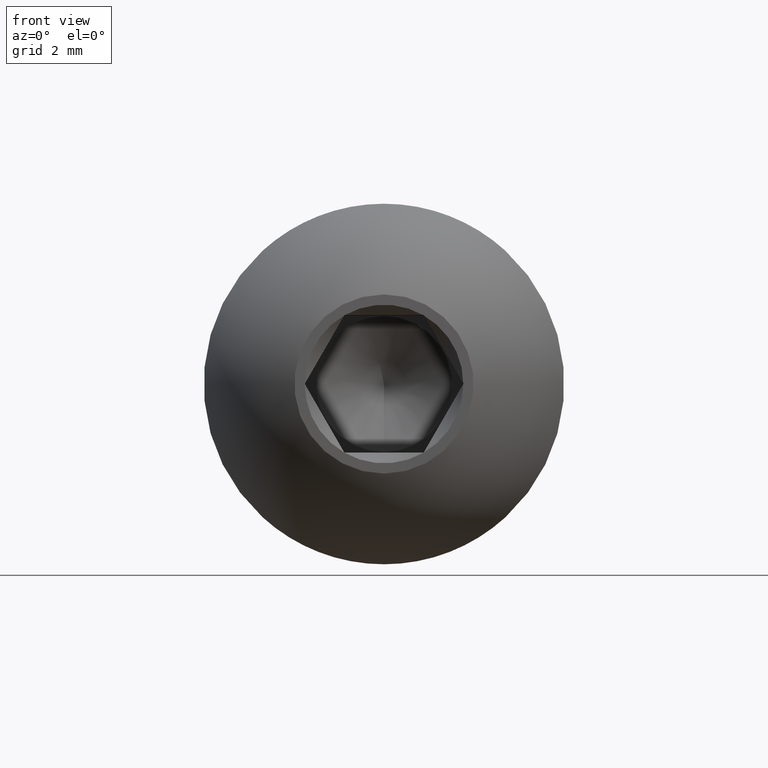
[diagram: clean part render]
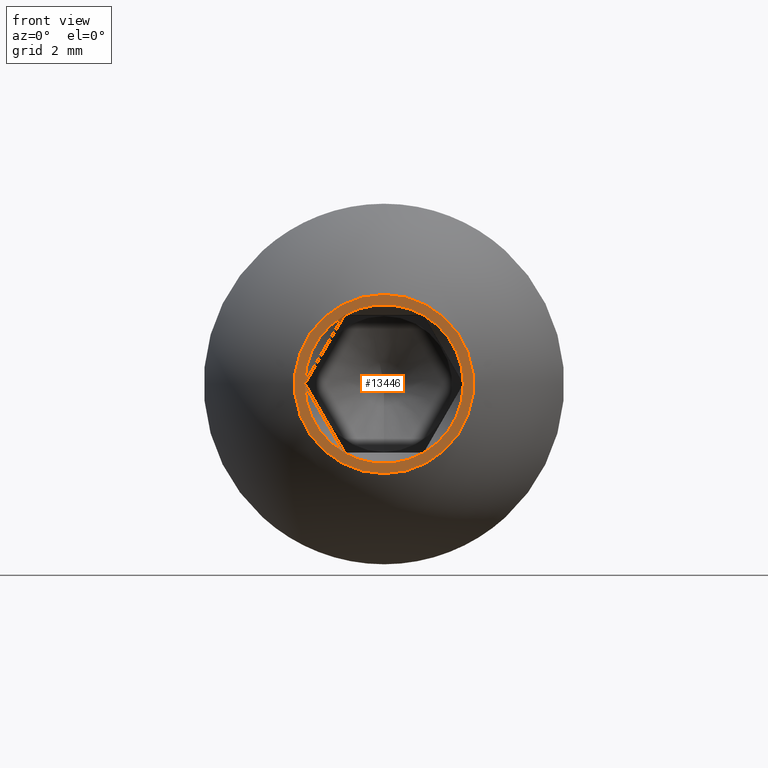
[diagram: same view with one face highlighted and labeled with its STEP entity id]
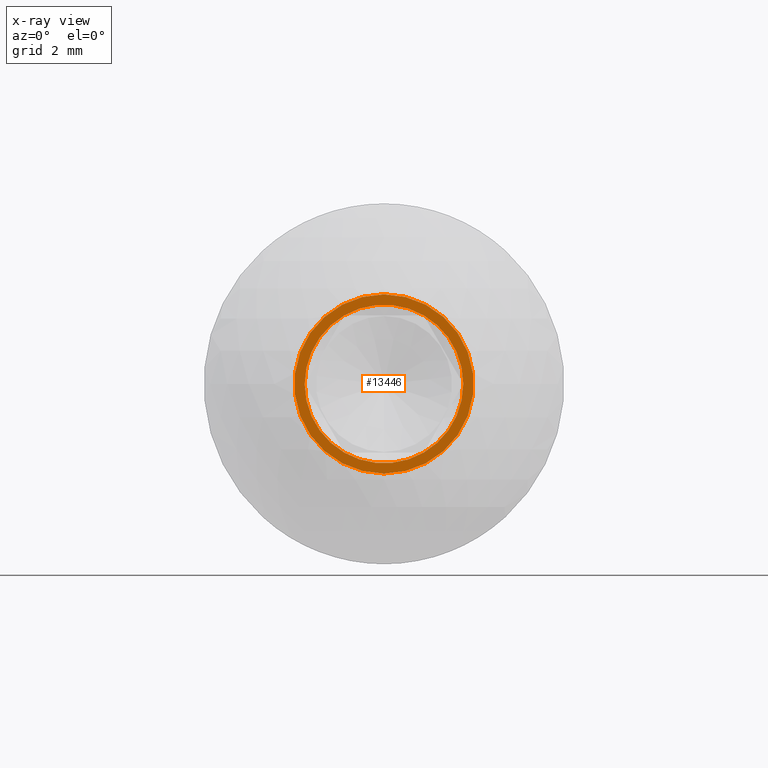
[diagram: x-ray of the same camera — body ghosted, the highlighted face saturated]
A machine part, front view. The second image highlights one B-rep face of the part: STEP entity #13446.
The next image is the same camera in x-ray: the body ghosted, the highlighted face saturated — about 0% of this face is hidden behind the body in this view.
In plain terms, the highlighted planar face has unit normal (0, 1, 0).
Its self-contained STEP definition (entity closure, byte-faithful):
#180 = CARTESIAN_POINT ( 'NONE',  ( 1.154700538379223500, 0.0000000000000000000, -2.000000000000016000 ) ) ;
#315 = CARTESIAN_POINT ( 'NONE',  ( 0.0000000000000000000, -8.673617379884035500E-016, -2.609401076758501000 ) ) ;
#317 = CARTESIAN_POINT ( 'NONE',  ( 0.0000000000000000000, -8.673617379884035500E-016, 0.0000000000000000000 ) ) ;
#593 = DIRECTION ( 'NONE',  ( 0.0000000000000000000, 0.0000000000000000000, -1.000000000000000000 ) ) ;
#595 = DIRECTION ( 'NONE',  ( -0.0000000000000000000, -1.000000000000000000, -0.0000000000000000000 ) ) ;
#663 = CARTESIAN_POINT ( 'NONE',  ( 0.0000000000000000000, 0.0000000000000000000, 0.0000000000000000000 ) ) ;
#677 = VERTEX_POINT ( 'NONE', #315 ) ;
#699 = DIRECTION ( 'NONE',  ( 0.0000000000000000000, 0.0000000000000000000, -1.000000000000000000 ) ) ;
#770 = CARTESIAN_POINT ( 'NONE',  ( 2.609401076758502700, -4.336808689942017700E-016, 0.0000000000000000000 ) ) ;
#863 = ORIENTED_EDGE ( 'NONE', *, *, #4738, .F. ) ;
#1011 = VERTEX_POINT ( 'NONE', #180 ) ;
#1200 = AXIS2_PLACEMENT_3D ( 'NONE', #4209, #13441, #593 ) ;
#1270 = AXIS2_PLACEMENT_3D ( 'NONE', #317, #4871, #3722 ) ;
#1309 = CARTESIAN_POINT ( 'NONE',  ( 2.309401076758477200, 0.0000000000000000000, -4.329725882211680000E-016 ) ) ;
#1414 = CARTESIAN_POINT ( 'NONE',  ( -1.154700538379267900, 0.0000000000000000000, -2.000000000000000900 ) ) ;
#1427 = FACE_OUTER_BOUND ( 'NONE', #9085, .T. ) ;
#1592 = CIRCLE ( 'NONE', #1270, 2.609401076758501000 ) ;
#1946 = DIRECTION ( 'NONE',  ( -0.0000000000000000000, -1.000000000000000000, -0.0000000000000000000 ) ) ;
#1985 = CIRCLE ( 'NONE', #2221, 2.309401076758502900 ) ;
#2104 = CARTESIAN_POINT ( 'NONE',  ( -1.154700538379267900, 0.0000000000000000000, 1.999999999999999600 ) ) ;
#2221 = AXIS2_PLACEMENT_3D ( 'NONE', #8917, #5473, #11441 ) ;
#2756 = CIRCLE ( 'NONE', #1200, 2.309401076758502900 ) ;
#3097 = DIRECTION ( 'NONE',  ( 0.0000000000000000000, 1.000000000000000000, 0.0000000000000000000 ) ) ;
#3265 = DIRECTION ( 'NONE',  ( -0.0000000000000000000, -1.000000000000000000, -0.0000000000000000000 ) ) ;
#3722 = DIRECTION ( 'NONE',  ( 0.0000000000000000000, 0.0000000000000000000, -1.000000000000000000 ) ) ;
#3864 = CIRCLE ( 'NONE', #13997, 2.309401076758502900 ) ;
#4185 = ORIENTED_EDGE ( 'NONE', *, *, #7587, .F. ) ;
#4209 = CARTESIAN_POINT ( 'NONE',  ( 0.0000000000000000000, 0.0000000000000000000, 0.0000000000000000000 ) ) ;
#4236 = ORIENTED_EDGE ( 'NONE', *, *, #6718, .F. ) ;
#4271 = ORIENTED_EDGE ( 'NONE', *, *, #14637, .F. ) ;
#4477 = VERTEX_POINT ( 'NONE', #1414 ) ;
#4738 = EDGE_CURVE ( 'NONE', #13922, #4477, #2756, .T. ) ;
#4871 = DIRECTION ( 'NONE',  ( -0.0000000000000000000, -1.000000000000000000, -0.0000000000000000000 ) ) ;
#5473 = DIRECTION ( 'NONE',  ( -0.0000000000000000000, -1.000000000000000000, -0.0000000000000000000 ) ) ;
#5567 = CARTESIAN_POINT ( 'NONE',  ( 0.0000000000000000000, 0.0000000000000000000, 0.0000000000000000000 ) ) ;
#6027 = AXIS2_PLACEMENT_3D ( 'NONE', #7144, #10710, #7244 ) ;
#6387 = CARTESIAN_POINT ( 'NONE',  ( 0.0000000000000000000, 0.0000000000000000000, 0.0000000000000000000 ) ) ;
#6496 = VERTEX_POINT ( 'NONE', #1309 ) ;
#6718 = EDGE_CURVE ( 'NONE', #13379, #7697, #14797, .T. ) ;
#7144 = CARTESIAN_POINT ( 'NONE',  ( 0.0000000000000000000, 0.0000000000000000000, 0.0000000000000000000 ) ) ;
#7244 = DIRECTION ( 'NONE',  ( 0.0000000000000000000, 0.0000000000000000000, -1.000000000000000000 ) ) ;
#7293 = CIRCLE ( 'NONE', #6027, 2.309401076758502900 ) ;
#7587 = EDGE_CURVE ( 'NONE', #1011, #6496, #3864, .T. ) ;
#7697 = VERTEX_POINT ( 'NONE', #2104 ) ;
#7742 = PLANE ( 'NONE',  #13661 ) ;
#7884 = EDGE_LOOP ( 'NONE', ( #4185, #11187, #863, #4271, #4236, #8149 ) ) ;
#8149 = ORIENTED_EDGE ( 'NONE', *, *, #13056, .F. ) ;
#8917 = CARTESIAN_POINT ( 'NONE',  ( 0.0000000000000000000, 0.0000000000000000000, 0.0000000000000000000 ) ) ;
#8937 = DIRECTION ( 'NONE',  ( 0.0000000000000000000, -0.0000000000000000000, 1.000000000000000000 ) ) ;
#9085 = EDGE_LOOP ( 'NONE', ( #9449 ) ) ;
#9449 = ORIENTED_EDGE ( 'NONE', *, *, #12346, .T. ) ;
#9480 = AXIS2_PLACEMENT_3D ( 'NONE', #663, #1946, #10113 ) ;
#9504 = CARTESIAN_POINT ( 'NONE',  ( -2.309401076758476300, 0.0000000000000000000, 1.326675390987758900E-016 ) ) ;
#10113 = DIRECTION ( 'NONE',  ( 0.0000000000000000000, 0.0000000000000000000, -1.000000000000000000 ) ) ;
#10710 = DIRECTION ( 'NONE',  ( -0.0000000000000000000, -1.000000000000000000, -0.0000000000000000000 ) ) ;
#11187 = ORIENTED_EDGE ( 'NONE', *, *, #13255, .F. ) ;
#11325 = CARTESIAN_POINT ( 'NONE',  ( 1.154700538379232100, 0.0000000000000000000, 1.999999999999999600 ) ) ;
#11441 = DIRECTION ( 'NONE',  ( 0.0000000000000000000, 0.0000000000000000000, -1.000000000000000000 ) ) ;
#12346 = EDGE_CURVE ( 'NONE', #677, #677, #1592, .T. ) ;
#12635 = FACE_BOUND ( 'NONE', #7884, .T. ) ;
#12712 = DIRECTION ( 'NONE',  ( 0.0000000000000000000, 0.0000000000000000000, -1.000000000000000000 ) ) ;
#13056 = EDGE_CURVE ( 'NONE', #6496, #13379, #13377, .T. ) ;
#13255 = EDGE_CURVE ( 'NONE', #4477, #1011, #7293, .T. ) ;
#13377 = CIRCLE ( 'NONE', #9480, 2.309401076758502900 ) ;
#13379 = VERTEX_POINT ( 'NONE', #11325 ) ;
#13441 = DIRECTION ( 'NONE',  ( -0.0000000000000000000, -1.000000000000000000, -0.0000000000000000000 ) ) ;
#13446 = ADVANCED_FACE ( 'NONE', ( #12635, #1427 ), #7742, .F. ) ;
#13661 = AXIS2_PLACEMENT_3D ( 'NONE', #770, #3097, #8937 ) ;
#13898 = AXIS2_PLACEMENT_3D ( 'NONE', #5567, #3265, #12712 ) ;
#13922 = VERTEX_POINT ( 'NONE', #9504 ) ;
#13997 = AXIS2_PLACEMENT_3D ( 'NONE', #6387, #595, #699 ) ;
#14637 = EDGE_CURVE ( 'NONE', #7697, #13922, #1985, .T. ) ;
#14797 = CIRCLE ( 'NONE', #13898, 2.309401076758502900 ) ;